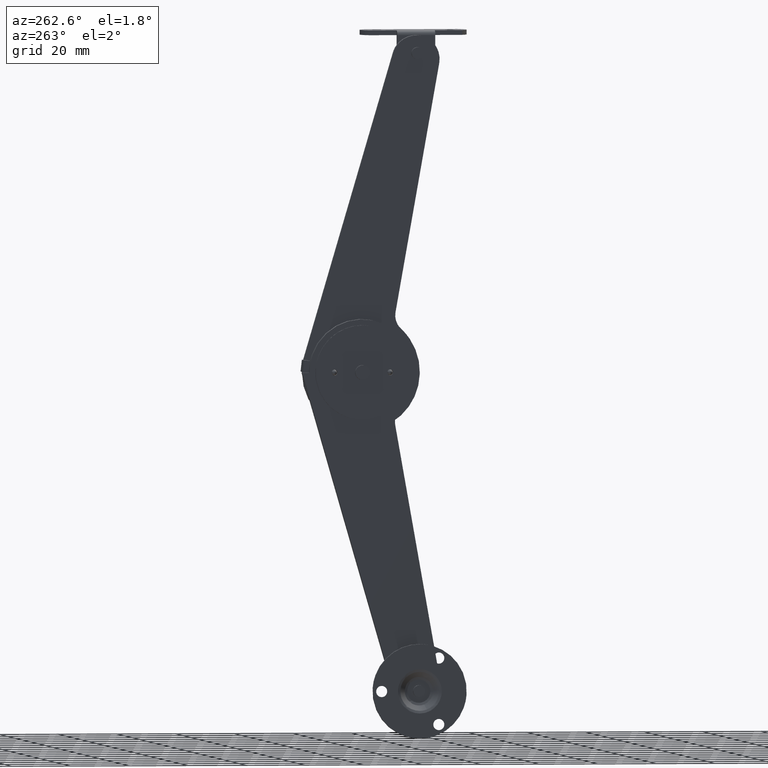
[diagram: clean part render]
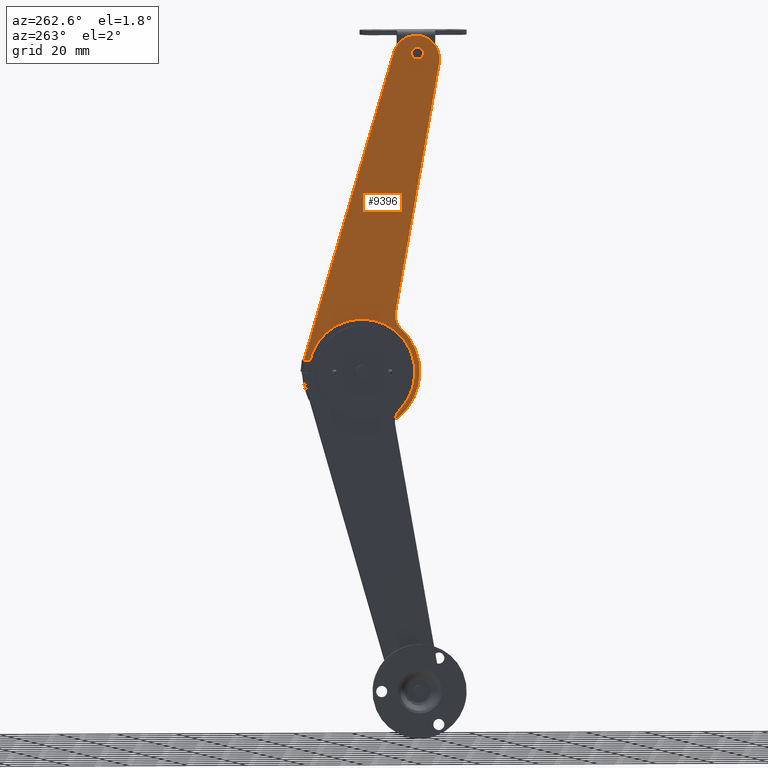
[diagram: same view with one face highlighted and labeled with its STEP entity id]
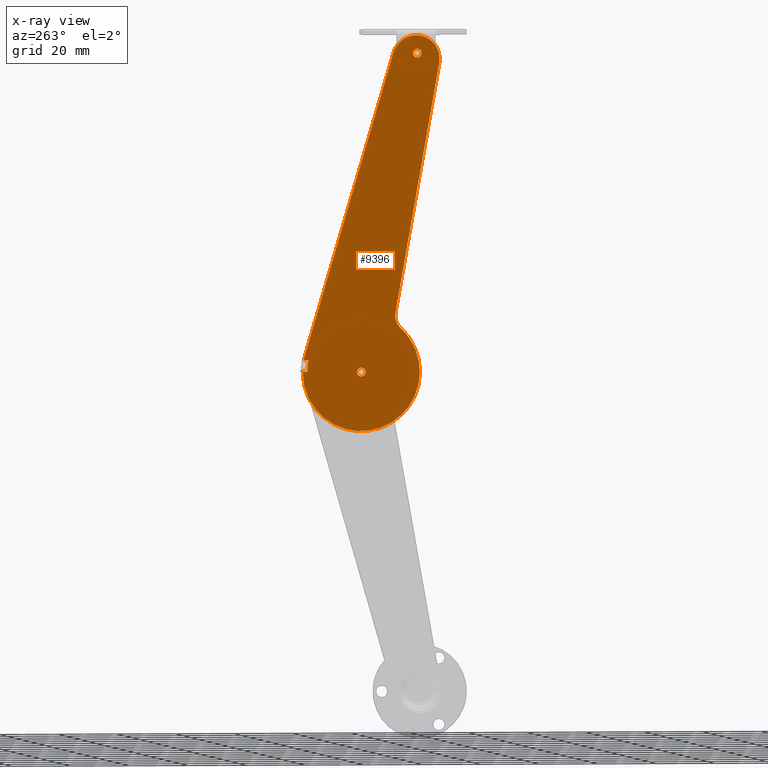
[diagram: x-ray of the same camera — body ghosted, the highlighted face saturated]
A machine part, auxiliary view. The second image highlights one B-rep face of the part: STEP entity #9396.
The next image is the same camera in x-ray: the body ghosted, the highlighted face saturated — about 0% of this face is hidden behind the body in this view.
In plain terms, the highlighted face is a freeform B-spline surface patch.
Its self-contained STEP definition (entity closure, byte-faithful):
#8336=CARTESIAN_POINT('',(6.899994000000080,20.590802289157029,0.177051355252875));
#8337=VERTEX_POINT('',#8336);
#8343=CARTESIAN_POINT('',(6.899994000000080,19.101287999999951,-1.500000000000001));
#8344=VERTEX_POINT('',#8343);
#8345=CARTESIAN_POINT('',(6.899994000000080,20.590802289157025,0.177051355252875));
#8346=CARTESIAN_POINT('',(6.899994000000080,20.601287999999954,0.088836182780149));
#8347=CARTESIAN_POINT('',(6.899994000000080,20.601287999999951,-1.164919E-015));
#8348=CARTESIAN_POINT('',(6.899994000000080,20.601287999999947,-1.500000000000001));
#8349=CARTESIAN_POINT('',(6.899994000000080,19.101287999999951,-1.500000000000001));
#8357=(BOUNDED_CURVE()B_SPLINE_CURVE(2,(#8345,#8346,#8347,#8348,#8349),.UNSPECIFIED.,.F.,.U.)B_SPLINE_CURVE_WITH_KNOTS((3,2,3),(0.229562472774116,0.250000000000000,0.500000000000000),.UNSPECIFIED.)CURVE()GEOMETRIC_REPRESENTATION_ITEM()RATIONAL_B_SPLINE_CURVE((0.956026752734460,0.976055947464893,1.0,0.707106781186548,1.0))REPRESENTATION_ITEM(''));
#8358=EDGE_CURVE('',#8337,#8344,#8357,.T.);
#8360=CARTESIAN_POINT('',(6.899994000000080,17.604085802579721,-0.091572812777779));
#8361=VERTEX_POINT('',#8360);
#8362=CARTESIAN_POINT('',(6.899994000000080,19.101287999999951,-1.500000000000001));
#8363=CARTESIAN_POINT('',(6.899994000000080,17.690228906204702,-1.500000000000002));
#8364=CARTESIAN_POINT('',(6.899994000000080,17.604085802579714,-0.091572812777779));
#8372=(BOUNDED_CURVE()B_SPLINE_CURVE(2,(#8362,#8363,#8364),.UNSPECIFIED.,.F.,.U.)B_SPLINE_CURVE_WITH_KNOTS((3,3),(0.500000000000000,0.739332961440895),.UNSPECIFIED.)CURVE()GEOMETRIC_REPRESENTATION_ITEM()RATIONAL_B_SPLINE_CURVE((1.0,0.719603994221682,0.976072039956348))REPRESENTATION_ITEM(''));
#8373=EDGE_CURVE('',#8344,#8361,#8372,.T.);
#8447=CARTESIAN_POINT('',(6.899994000000080,19.101287999999951,1.499999999999999));
#8448=VERTEX_POINT('',#8447);
#8449=CARTESIAN_POINT('',(6.899994000000080,17.604085802579718,-0.091572812777779));
#8450=CARTESIAN_POINT('',(6.899994000000080,17.601287999999947,-0.045829148433122));
#8451=CARTESIAN_POINT('',(6.899994000000080,17.601287999999951,-1.164919E-015));
#8452=CARTESIAN_POINT('',(6.899994000000080,17.601287999999951,1.500000000000000));
#8453=CARTESIAN_POINT('',(6.899994000000080,19.101287999999951,1.499999999999999));
#8461=(BOUNDED_CURVE()B_SPLINE_CURVE(2,(#8449,#8450,#8451,#8452,#8453),.UNSPECIFIED.,.F.,.U.)B_SPLINE_CURVE_WITH_KNOTS((3,2,3),(0.739332961440894,0.750000000000000,1.0),.UNSPECIFIED.)CURVE()GEOMETRIC_REPRESENTATION_ITEM()RATIONAL_B_SPLINE_CURVE((0.976072039956347,0.987502786964865,1.0,0.707106781186548,1.0))REPRESENTATION_ITEM(''));
#8462=EDGE_CURVE('',#8361,#8448,#8461,.T.);
#8464=CARTESIAN_POINT('',(6.899994000000080,19.101287999999951,1.499999999999999));
#8465=CARTESIAN_POINT('',(6.899994000000080,20.433549783040348,1.499999999999999));
#8466=CARTESIAN_POINT('',(6.899994000000080,20.590802289157029,0.177051355252875));
#8474=(BOUNDED_CURVE()B_SPLINE_CURVE(2,(#8464,#8465,#8466),.UNSPECIFIED.,.F.,.U.)B_SPLINE_CURVE_WITH_KNOTS((3,3),(0.0,0.229562472774116),.UNSPECIFIED.)CURVE()GEOMETRIC_REPRESENTATION_ITEM()RATIONAL_B_SPLINE_CURVE((1.0,0.731050833721655,0.956026752734460))REPRESENTATION_ITEM(''));
#8475=EDGE_CURVE('',#8448,#8337,#8474,.T.);
#8533=CARTESIAN_POINT('',(6.899994000000080,-1.495376000405043,107.881182353935200));
#8534=VERTEX_POINT('',#8533);
#8540=CARTESIAN_POINT('',(6.899994000000080,-2.634445E-017,109.498871000000190));
#8541=VERTEX_POINT('',#8540);
#8542=CARTESIAN_POINT('',(6.899994000000080,-1.495376000405043,107.881182353935150));
#8543=CARTESIAN_POINT('',(6.899994000000080,-1.500000000000000,107.939935837003940));
#8544=CARTESIAN_POINT('',(6.899994000000080,-1.500000000000000,107.998871000000190));
#8545=CARTESIAN_POINT('',(6.899994000000080,-1.500000000000000,109.498871000000190));
#8546=CARTESIAN_POINT('',(6.899994000000080,-2.634445E-017,109.498871000000190));
#8554=(BOUNDED_CURVE()B_SPLINE_CURVE(2,(#8542,#8543,#8544,#8545,#8546),.UNSPECIFIED.,.F.,.U.)B_SPLINE_CURVE_WITH_KNOTS((3,2,3),(0.736331300065717,0.750000000000000,1.0),.UNSPECIFIED.)CURVE()GEOMETRIC_REPRESENTATION_ITEM()RATIONAL_B_SPLINE_CURVE((0.969723354988426,0.983986121917011,1.0,0.707106781186548,1.0))REPRESENTATION_ITEM(''));
#8555=EDGE_CURVE('',#8534,#8541,#8554,.T.);
#8557=CARTESIAN_POINT('',(6.899994000000080,1.495376000405043,108.116559646065200));
#8558=VERTEX_POINT('',#8557);
#8559=CARTESIAN_POINT('',(6.899994000000080,-2.634445E-017,109.498871000000190));
#8560=CARTESIAN_POINT('',(6.899994000000080,1.386585732886485,109.498871000000210));
#8561=CARTESIAN_POINT('',(6.899994000000080,1.495376000405043,108.116559646065260));
#8569=(BOUNDED_CURVE()B_SPLINE_CURVE(2,(#8559,#8560,#8561),.UNSPECIFIED.,.F.,.U.)B_SPLINE_CURVE_WITH_KNOTS((3,3),(0.0,0.236331300065717),.UNSPECIFIED.)CURVE()GEOMETRIC_REPRESENTATION_ITEM()RATIONAL_B_SPLINE_CURVE((1.0,0.723120659269537,0.969723354988426))REPRESENTATION_ITEM(''));
#8570=EDGE_CURVE('',#8541,#8558,#8569,.T.);
#8616=CARTESIAN_POINT('',(6.899994000000080,-2.634445E-017,106.498871000000190));
#8617=VERTEX_POINT('',#8616);
#8618=CARTESIAN_POINT('',(6.899994000000080,1.495376000405043,108.116559646065280));
#8619=CARTESIAN_POINT('',(6.899994000000080,1.500000000000000,108.057806162996410));
#8620=CARTESIAN_POINT('',(6.899994000000080,1.500000000000000,107.998871000000190));
#8621=CARTESIAN_POINT('',(6.899994000000080,1.500000000000000,106.498871000000190));
#8622=CARTESIAN_POINT('',(6.899994000000080,-2.634445E-017,106.498871000000190));
#8630=(BOUNDED_CURVE()B_SPLINE_CURVE(2,(#8618,#8619,#8620,#8621,#8622),.UNSPECIFIED.,.F.,.U.)B_SPLINE_CURVE_WITH_KNOTS((3,2,3),(0.236331300065717,0.250000000000000,0.500000000000000),.UNSPECIFIED.)CURVE()GEOMETRIC_REPRESENTATION_ITEM()RATIONAL_B_SPLINE_CURVE((0.969723354988426,0.983986121917011,1.0,0.707106781186548,1.0))REPRESENTATION_ITEM(''));
#8631=EDGE_CURVE('',#8558,#8617,#8630,.T.);
#8633=CARTESIAN_POINT('',(6.899994000000080,-2.634445E-017,106.498871000000190));
#8634=CARTESIAN_POINT('',(6.899994000000080,-1.386585732886487,106.498871000000180));
#8635=CARTESIAN_POINT('',(6.899994000000080,-1.495376000405043,107.881182353935220));
#8643=(BOUNDED_CURVE()B_SPLINE_CURVE(2,(#8633,#8634,#8635),.UNSPECIFIED.,.F.,.U.)B_SPLINE_CURVE_WITH_KNOTS((3,3),(0.500000000000000,0.736331300065717),.UNSPECIFIED.)CURVE()GEOMETRIC_REPRESENTATION_ITEM()RATIONAL_B_SPLINE_CURVE((1.0,0.723120659269537,0.969723354988427))REPRESENTATION_ITEM(''));
#8644=EDGE_CURVE('',#8617,#8534,#8643,.T.);
#8711=CARTESIAN_POINT('',(6.899994000000110,37.129187999999900,4.024811000000169));
#8712=VERTEX_POINT('',#8711);
#8719=CARTESIAN_POINT('',(6.899994000000080,37.582000999999998,0.050537000000190));
#8720=VERTEX_POINT('',#8719);
#8726=CARTESIAN_POINT('',(6.899994000000110,37.129187999999900,4.024811000000169));
#8727=CARTESIAN_POINT('',(6.899994000000080,37.582000999999998,0.050537000000190));
#8728=QUASI_UNIFORM_CURVE('',1,(#8726,#8727),.UNSPECIFIED.,.F.,.U.);
#8729=EDGE_CURVE('',#8712,#8720,#8728,.T.);
#8739=CARTESIAN_POINT('',(6.899994000000110,38.655624882082151,4.198735227076500));
#8740=VERTEX_POINT('',#8739);
#8748=CARTESIAN_POINT('',(6.899994000000110,38.655624882082151,4.198735227076500));
#8749=CARTESIAN_POINT('',(6.899994000000110,37.129187999999900,4.024811000000169));
#8750=QUASI_UNIFORM_CURVE('',1,(#8748,#8749),.UNSPECIFIED.,.F.,.U.);
#8751=EDGE_CURVE('',#8740,#8712,#8750,.T.);
#8763=CARTESIAN_POINT('',(6.899994000000080,39.569122999999998,0.276947000000005));
#8764=VERTEX_POINT('',#8763);
#8770=CARTESIAN_POINT('',(6.899994000000080,37.582000999999998,0.050537000000190));
#8771=CARTESIAN_POINT('',(6.899994000000080,39.569122999999998,0.276947000000005));
#8772=QUASI_UNIFORM_CURVE('',1,(#8770,#8771),.UNSPECIFIED.,.F.,.U.);
#8773=EDGE_CURVE('',#8720,#8764,#8772,.T.);
#9084=CARTESIAN_POINT('',(6.899994000000080,7.416105446805230,20.199800063666650));
#9085=VERTEX_POINT('',#9084);
#9091=CARTESIAN_POINT('',(6.899994000000080,5.569181175677129,14.726917019360000));
#9092=VERTEX_POINT('',#9091);
#9093=CARTESIAN_POINT('',(6.899994000000080,7.416105446805230,20.199800063666650));
#9094=CARTESIAN_POINT('',(6.899994000000080,7.995348786758909,16.956244230352954));
#9095=CARTESIAN_POINT('',(6.899994000000080,5.569181175677129,14.726917019360000));
#9103=(BOUNDED_CURVE()B_SPLINE_CURVE(2,(#9093,#9094,#9095),.UNSPECIFIED.,.F.,.U.)CURVE()GEOMETRIC_REPRESENTATION_ITEM()QUASI_UNIFORM_CURVE()RATIONAL_B_SPLINE_CURVE((1.0,0.876531985535471,1.0))REPRESENTATION_ITEM(''));
#9104=EDGE_CURVE('',#9085,#9092,#9103,.T.);
#9138=CARTESIAN_POINT('',(6.899994000000080,39.101224153669037,0.050535622690257));
#9139=VERTEX_POINT('',#9138);
#9140=CARTESIAN_POINT('',(6.899994000000080,39.101224153669023,0.050535622690254));
#9141=CARTESIAN_POINT('',(6.899994000000081,39.140604229338713,-15.534490487463026));
#9142=CARTESIAN_POINT('',(6.899994000000080,24.037715041322770,-19.381219983935399));
#9143=CARTESIAN_POINT('',(6.899994000000081,8.934825853306833,-23.227949480407759));
#9144=CARTESIAN_POINT('',(6.899994000000080,1.514000540250474,-9.522989016487363));
#9145=CARTESIAN_POINT('',(6.899994000000081,-5.906824772805884,4.181971447433043));
#9146=CARTESIAN_POINT('',(6.899994000000080,5.569181175677120,14.726917019360011));
#9154=(BOUNDED_CURVE()B_SPLINE_CURVE(2,(#9140,#9141,#9142,#9143,#9144,#9145,#9146),.UNSPECIFIED.,.F.,.U.)B_SPLINE_CURVE_WITH_KNOTS((3,2,2,3),(0.0,0.333333333333333,0.666666666666667,1.0),.UNSPECIFIED.)CURVE()GEOMETRIC_REPRESENTATION_ITEM()RATIONAL_B_SPLINE_CURVE((1.0,0.788787664420309,1.0,0.788787664420309,1.0,0.788787664420309,1.0))REPRESENTATION_ITEM(''));
#9155=EDGE_CURVE('',#9139,#9092,#9154,.T.);
#9172=CARTESIAN_POINT('',(6.899994000000080,39.569122999999998,0.276947000000005));
#9173=CARTESIAN_POINT('',(6.899994000000080,39.101224153669037,0.050535622690257));
#9174=QUASI_UNIFORM_CURVE('',1,(#9172,#9173),.UNSPECIFIED.,.F.,.U.);
#9175=EDGE_CURVE('',#8764,#9139,#9174,.T.);
#9211=CARTESIAN_POINT('',(6.899994000000080,38.712667673070349,4.205233777586670));
#9212=VERTEX_POINT('',#9211);
#9213=CARTESIAN_POINT('',(6.899994000000080,38.712667673070349,4.205233777586670));
#9214=CARTESIAN_POINT('',(6.899994000000110,38.655624882082151,4.198735227076500));
#9215=QUASI_UNIFORM_CURVE('',1,(#9213,#9214),.UNSPECIFIED.,.F.,.U.);
#9216=EDGE_CURVE('',#9212,#8740,#9215,.T.);
#9233=CARTESIAN_POINT('',(6.899994000000080,8.020661000000180,108.291901000000190));
#9234=VERTEX_POINT('',#9233);
#9235=CARTESIAN_POINT('',(6.899994000000080,8.020661000000180,108.291901000000190));
#9236=CARTESIAN_POINT('',(6.899994000000080,38.712667673070349,4.205233777586670));
#9237=QUASI_UNIFORM_CURVE('',1,(#9235,#9236),.UNSPECIFIED.,.F.,.U.);
#9238=EDGE_CURVE('',#9234,#9212,#9237,.T.);
#9264=CARTESIAN_POINT('',(6.899994000000080,6.499976638862320,111.142400101020800));
#9265=VERTEX_POINT('',#9264);
#9266=CARTESIAN_POINT('',(6.899994000000080,6.499976638862403,111.142400101020900));
#9267=CARTESIAN_POINT('',(6.899994000000080,7.554172748338359,109.873915754887550));
#9268=CARTESIAN_POINT('',(6.899994000000080,8.020661000000217,108.291901000000190));
#9276=(BOUNDED_CURVE()B_SPLINE_CURVE(2,(#9266,#9267,#9268),.UNSPECIFIED.,.F.,.U.)CURVE()GEOMETRIC_REPRESENTATION_ITEM()QUASI_UNIFORM_CURVE()RATIONAL_B_SPLINE_CURVE((1.0,0.979399972822811,1.0))REPRESENTATION_ITEM(''));
#9277=EDGE_CURVE('',#9265,#9234,#9276,.T.);
#9307=CARTESIAN_POINT('',(6.899994000000080,-7.530242158632809,104.634787331276400));
#9308=VERTEX_POINT('',#9307);
#9309=CARTESIAN_POINT('',(6.899994000000080,-7.530242158632789,104.634787331276400));
#9310=CARTESIAN_POINT('',(6.899994000000080,-8.603241529562462,110.696385180143200));
#9311=CARTESIAN_POINT('',(6.899994000000080,-3.018869385264293,113.286575112443300));
#9312=CARTESIAN_POINT('',(6.899994000000080,2.565502759033875,115.876765044743440));
#9313=CARTESIAN_POINT('',(6.899994000000080,6.499976638862313,111.142400101020800));
#9321=(BOUNDED_CURVE()B_SPLINE_CURVE(2,(#9309,#9310,#9311,#9312,#9313),.UNSPECIFIED.,.F.,.U.)B_SPLINE_CURVE_WITH_KNOTS((3,2,3),(0.0,0.500000000000000,1.0),.UNSPECIFIED.)CURVE()GEOMETRIC_REPRESENTATION_ITEM()RATIONAL_B_SPLINE_CURVE((1.0,0.792528794551222,1.0,0.792528794551222,1.0))REPRESENTATION_ITEM(''));
#9322=EDGE_CURVE('',#9308,#9265,#9321,.T.);
#9339=CARTESIAN_POINT('',(6.899994000000080,7.416105446805230,20.199800063666650));
#9340=CARTESIAN_POINT('',(6.899994000000080,-7.530242158632809,104.634787331276400));
#9341=QUASI_UNIFORM_CURVE('',1,(#9339,#9340),.UNSPECIFIED.,.F.,.U.);
#9342=EDGE_CURVE('',#9085,#9308,#9341,.T.);
#9366=CARTESIAN_POINT('',(6.899994000000110,41.927852870386189,-26.692273896073289));
#9367=CARTESIAN_POINT('',(6.899994000000110,-10.011438490989249,-26.692273896073289));
#9368=CARTESIAN_POINT('',(6.899994000000110,41.927852870386189,120.723841066183000));
#9369=CARTESIAN_POINT('',(6.899994000000110,-10.011438490989240,120.723841066183000));
#9370=B_SPLINE_SURFACE_WITH_KNOTS('',1,1,((#9366,#9368),(#9367,#9369)),.UNSPECIFIED.,.F.,.F.,.U.,(2,2),(2,2),(0.0,51.939291361375439),(0.0,147.416114962256300),.UNSPECIFIED.);
#9371=ORIENTED_EDGE('',*,*,#8773,.T.);
#9372=ORIENTED_EDGE('',*,*,#9175,.T.);
#9373=ORIENTED_EDGE('',*,*,#9155,.T.);
#9374=ORIENTED_EDGE('',*,*,#9104,.F.);
#9375=ORIENTED_EDGE('',*,*,#9342,.T.);
#9376=ORIENTED_EDGE('',*,*,#9322,.T.);
#9377=ORIENTED_EDGE('',*,*,#9277,.T.);
#9378=ORIENTED_EDGE('',*,*,#9238,.T.);
#9379=ORIENTED_EDGE('',*,*,#9216,.T.);
#9380=ORIENTED_EDGE('',*,*,#8751,.T.);
#9381=ORIENTED_EDGE('',*,*,#8729,.T.);
#9382=EDGE_LOOP('',(#9371,#9372,#9373,#9374,#9375,#9376,#9377,#9378,#9379,#9380,#9381));
#9383=FACE_OUTER_BOUND('',#9382,.T.);
#9384=ORIENTED_EDGE('',*,*,#8644,.F.);
#9385=ORIENTED_EDGE('',*,*,#8631,.F.);
#9386=ORIENTED_EDGE('',*,*,#8570,.F.);
#9387=ORIENTED_EDGE('',*,*,#8555,.F.);
#9388=EDGE_LOOP('',(#9384,#9385,#9386,#9387));
#9389=FACE_BOUND('',#9388,.T.);
#9390=ORIENTED_EDGE('',*,*,#8373,.F.);
#9391=ORIENTED_EDGE('',*,*,#8358,.F.);
#9392=ORIENTED_EDGE('',*,*,#8475,.F.);
#9393=ORIENTED_EDGE('',*,*,#8462,.F.);
#9394=EDGE_LOOP('',(#9390,#9391,#9392,#9393));
#9395=FACE_BOUND('',#9394,.T.);
#9396=ADVANCED_FACE('',(#9383,#9389,#9395),#9370,.T.);